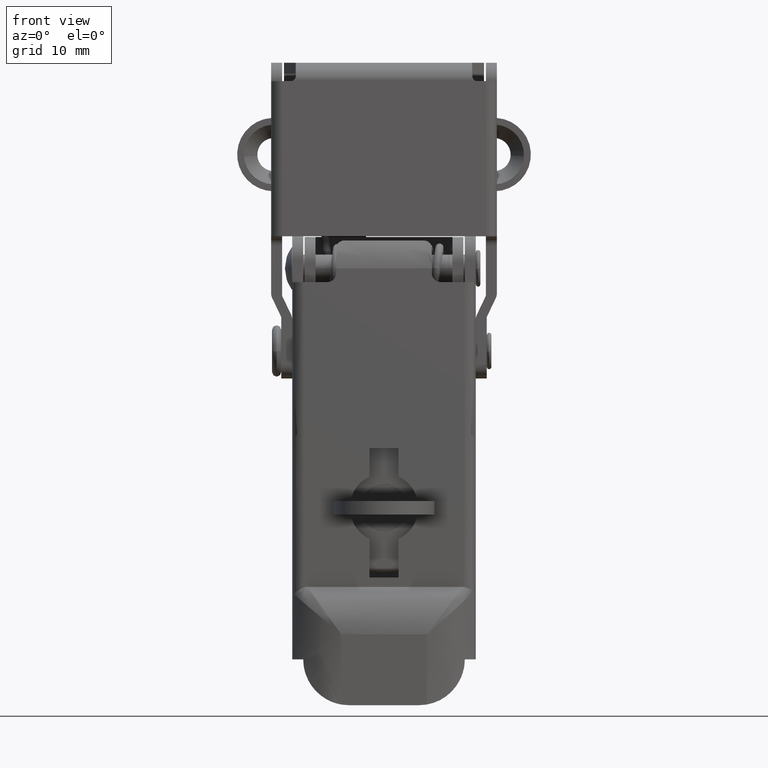
[diagram: clean part render]
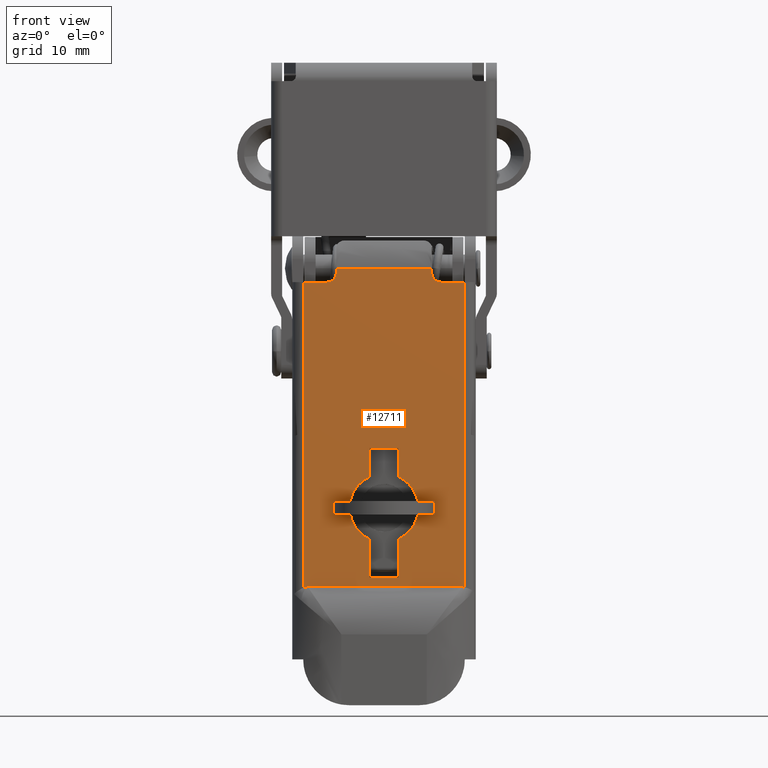
[diagram: same view with one face highlighted and labeled with its STEP entity id]
A machine part, front view. The second image highlights one B-rep face of the part: STEP entity #12711.
In plain terms, the highlighted face is a freeform B-spline surface patch.
Its self-contained STEP definition (entity closure, byte-faithful):
#11162=CARTESIAN_POINT('',(5.199999999999820,-10.000000000000901,8.099999999999881));
#11163=VERTEX_POINT('',#11162);
#11169=CARTESIAN_POINT('',(6.199999999999820,-10.000000000000901,7.099999999999880));
#11170=VERTEX_POINT('',#11169);
#11171=CARTESIAN_POINT('',(6.199999999999820,-10.000000000000901,7.099999999999880));
#11172=CARTESIAN_POINT('',(5.199999999999820,-10.000000000000901,7.099999999999882));
#11173=CARTESIAN_POINT('',(5.199999999999820,-10.000000000000901,8.099999999999881));
#11181=(BOUNDED_CURVE()B_SPLINE_CURVE(2,(#11171,#11172,#11173),.UNSPECIFIED.,.F.,.U.)CURVE()GEOMETRIC_REPRESENTATION_ITEM()QUASI_UNIFORM_CURVE()RATIONAL_B_SPLINE_CURVE((1.0,0.707106781186548,1.0))REPRESENTATION_ITEM(''));
#11182=EDGE_CURVE('',#11170,#11163,#11181,.T.);
#11402=CARTESIAN_POINT('',(-6.199999999999820,-10.000000000000840,7.099999999999880));
#11403=VERTEX_POINT('',#11402);
#11409=CARTESIAN_POINT('',(-5.199999999999820,-10.000000000000840,8.099999999999881));
#11410=VERTEX_POINT('',#11409);
#11411=CARTESIAN_POINT('',(-5.199999999999820,-10.000000000000840,8.099999999999881));
#11412=CARTESIAN_POINT('',(-5.199999999999820,-10.000000000000901,7.099999999999882));
#11413=CARTESIAN_POINT('',(-6.199999999999820,-10.000000000000901,7.099999999999880));
#11421=(BOUNDED_CURVE()B_SPLINE_CURVE(2,(#11411,#11412,#11413),.UNSPECIFIED.,.F.,.U.)CURVE()GEOMETRIC_REPRESENTATION_ITEM()QUASI_UNIFORM_CURVE()RATIONAL_B_SPLINE_CURVE((1.0,0.707106781186548,1.0))REPRESENTATION_ITEM(''));
#11422=EDGE_CURVE('',#11410,#11403,#11421,.T.);
#11450=CARTESIAN_POINT('',(-1.599999999999420,-10.000000000000901,-14.108466423577701));
#11451=VERTEX_POINT('',#11450);
#11452=CARTESIAN_POINT('',(-1.599999999999400,-10.000000000000901,-20.891533576422550));
#11453=VERTEX_POINT('',#11452);
#11454=CARTESIAN_POINT('',(-1.599999999999420,-10.000000000000901,-14.108466423577701));
#11455=CARTESIAN_POINT('',(-1.919437147472241,-10.000000000000950,-14.259011946023740));
#11456=CARTESIAN_POINT('',(-2.403429566616071,-10.000000000000799,-14.577800651997860));
#11457=CARTESIAN_POINT('',(-2.921936541103976,-10.000000000001020,-15.124279887264629));
#11458=CARTESIAN_POINT('',(-3.309443404865396,-10.000000000000730,-15.690229696084710));
#11459=CARTESIAN_POINT('',(-3.604989057299813,-10.000000000001050,-16.361150221355800));
#11460=CARTESIAN_POINT('',(-3.754876789957320,-10.000000000000840,-17.123348420227892));
#11461=CARTESIAN_POINT('',(-3.754848820318179,-10.000000000000940,-17.788025399372060));
#11462=CARTESIAN_POINT('',(-3.663814725426994,-10.000000000000890,-18.356020048420319));
#11463=CARTESIAN_POINT('',(-3.480675914143810,-10.000000000000810,-18.947852594402029));
#11464=CARTESIAN_POINT('',(-3.144622626221764,-10.000000000000981,-19.598626398130261));
#11465=CARTESIAN_POINT('',(-2.531115431920582,-10.000000000000840,-20.330893932290241));
#11466=CARTESIAN_POINT('',(-1.959399840492692,-10.000000000000931,-20.722221383805302));
#11467=CARTESIAN_POINT('',(-1.599999999999400,-10.000000000000901,-20.891533576422550));
#11468=B_SPLINE_CURVE_WITH_KNOTS('',3,(#11454,#11455,#11456,#11457,#11458,#11459,#11460,#11461,#11462,#11463,#11464,#11465,#11466,#11467),.UNSPECIFIED.,.F.,.U.,(4,1,1,1,1,1,1,1,1,1,1,4),(0.000000066314634,1.059370220122999,1.721488664389436,2.251189328274649,3.111953790427867,3.906496400660060,4.568560786095483,5.098251847248956,5.627953385796211,6.422501400886731,7.283264964682366,8.475053191979381),.UNSPECIFIED.);
#11469=EDGE_CURVE('',#11451,#11453,#11468,.T.);
#11510=CARTESIAN_POINT('',(-1.599999999999400,-10.000000000000901,-25.100000000003501));
#11511=VERTEX_POINT('',#11510);
#11512=CARTESIAN_POINT('',(-1.599999999999400,-10.000000000000901,-25.100000000003501));
#11513=CARTESIAN_POINT('',(-1.599999999999400,-10.000000000000901,-20.891533576422550));
#11514=QUASI_UNIFORM_CURVE('',1,(#11512,#11513),.UNSPECIFIED.,.F.,.U.);
#11515=EDGE_CURVE('',#11511,#11453,#11514,.T.);
#11538=CARTESIAN_POINT('',(1.600000000000000,-10.000000000000901,-25.100000000003501));
#11539=VERTEX_POINT('',#11538);
#11540=CARTESIAN_POINT('',(1.600000000000000,-10.000000000000901,-25.100000000003501));
#11541=CARTESIAN_POINT('',(-1.599999999999400,-10.000000000000901,-25.100000000003501));
#11542=QUASI_UNIFORM_CURVE('',1,(#11540,#11541),.UNSPECIFIED.,.F.,.U.);
#11543=EDGE_CURVE('',#11539,#11511,#11542,.T.);
#11566=CARTESIAN_POINT('',(1.600000000000000,-10.000000000000901,-20.891533576422649));
#11567=VERTEX_POINT('',#11566);
#11568=CARTESIAN_POINT('',(1.600000000000000,-10.000000000000901,-20.891533576422649));
#11569=CARTESIAN_POINT('',(1.600000000000000,-10.000000000000901,-25.100000000003501));
#11570=QUASI_UNIFORM_CURVE('',1,(#11568,#11569),.UNSPECIFIED.,.F.,.U.);
#11571=EDGE_CURVE('',#11567,#11539,#11570,.T.);
#11607=CARTESIAN_POINT('',(1.600000000000000,-10.000000000000901,-14.108466423577701));
#11608=VERTEX_POINT('',#11607);
#11609=CARTESIAN_POINT('',(1.600000000000000,-10.000000000000901,-20.891533576422649));
#11610=CARTESIAN_POINT('',(1.959410036740413,-10.000000000000901,-20.722232278429619));
#11611=CARTESIAN_POINT('',(2.512658749937712,-10.000000000000931,-20.343498363469770));
#11612=CARTESIAN_POINT('',(3.074363825626052,-10.000000000000860,-19.684921410610499));
#11613=CARTESIAN_POINT('',(3.460021804806671,-10.000000000000940,-19.012774221256500));
#11614=CARTESIAN_POINT('',(3.689342167653449,-10.000000000000870,-18.315647200752490));
#11615=CARTESIAN_POINT('',(3.778348344707849,-10.000000000000931,-17.478413356537519));
#11616=CARTESIAN_POINT('',(3.689062435863840,-10.000000000000840,-16.638070838807799));
#11617=CARTESIAN_POINT('',(3.381391829928322,-10.000000000001050,-15.803385488302659));
#11618=CARTESIAN_POINT('',(2.978317647366498,-10.000000000000840,-15.191855571954020));
#11619=CARTESIAN_POINT('',(2.420428544350481,-10.000000000000940,-14.593375328008150));
#11620=CARTESIAN_POINT('',(1.959410642810536,-10.000000000000890,-14.277777872797460));
#11621=CARTESIAN_POINT('',(1.600000000000000,-10.000000000000901,-14.108466423577701));
#11622=B_SPLINE_CURVE_WITH_KNOTS('',3,(#11609,#11610,#11611,#11612,#11613,#11614,#11615,#11616,#11617,#11618,#11619,#11620,#11621),.UNSPECIFIED.,.F.,.U.,(4,1,1,1,1,1,1,1,1,1,4),(0.000000066310598,1.191792389936918,1.986338669856984,2.582252876537316,3.509228701436535,4.171324237496062,5.098251847248744,6.025229990414235,6.819775066247779,7.283264964682780,8.475053191979869),.UNSPECIFIED.);
#11623=EDGE_CURVE('',#11567,#11608,#11622,.T.);
#11657=CARTESIAN_POINT('',(1.600000000000000,-10.000000000000901,-11.0));
#11658=VERTEX_POINT('',#11657);
#11659=CARTESIAN_POINT('',(1.600000000000000,-10.000000000000901,-11.0));
#11660=CARTESIAN_POINT('',(1.600000000000000,-10.000000000000901,-14.108466423577701));
#11661=QUASI_UNIFORM_CURVE('',1,(#11659,#11660),.UNSPECIFIED.,.F.,.U.);
#11662=EDGE_CURVE('',#11658,#11608,#11661,.T.);
#11685=CARTESIAN_POINT('',(-1.599999999999400,-10.000000000000901,-11.0));
#11686=VERTEX_POINT('',#11685);
#11687=CARTESIAN_POINT('',(-1.599999999999400,-10.000000000000901,-11.0));
#11688=CARTESIAN_POINT('',(1.600000000000000,-10.000000000000901,-11.0));
#11689=QUASI_UNIFORM_CURVE('',1,(#11687,#11688),.UNSPECIFIED.,.F.,.U.);
#11690=EDGE_CURVE('',#11686,#11658,#11689,.T.);
#11713=CARTESIAN_POINT('',(-1.599999999999420,-10.000000000000901,-14.108466423577701));
#11714=CARTESIAN_POINT('',(-1.599999999999400,-10.000000000000901,-11.0));
#11715=QUASI_UNIFORM_CURVE('',1,(#11713,#11714),.UNSPECIFIED.,.F.,.U.);
#11716=EDGE_CURVE('',#11451,#11686,#11715,.T.);
#11948=CARTESIAN_POINT('',(-8.309695762978798,-10.000000000000840,-26.100000000003501));
#11949=VERTEX_POINT('',#11948);
#11978=CARTESIAN_POINT('',(-8.800000000000001,-10.000000000000840,-26.203446452669500));
#11979=VERTEX_POINT('',#11978);
#11980=CARTESIAN_POINT('',(-8.800000000000001,-10.000000000000840,-26.203446452669500));
#11981=CARTESIAN_POINT('',(-8.723042808795004,-10.000000000000840,-26.167373955368578));
#11982=CARTESIAN_POINT('',(-8.643344279397903,-10.000000000000840,-26.141727626243330));
#11983=CARTESIAN_POINT('',(-8.479333247419479,-10.000000000000840,-26.107983353856110));
#11984=CARTESIAN_POINT('',(-8.394490487036560,-10.000000000000840,-26.100000000003959));
#11985=CARTESIAN_POINT('',(-8.309695762978739,-10.000000000000840,-26.100000000003948));
#11986=B_SPLINE_CURVE_WITH_KNOTS('',3,(#11980,#11981,#11982,#11983,#11984,#11985),.UNSPECIFIED.,.F.,.U.,(4,2,4),(0.0,0.500000000000000,1.0),.UNSPECIFIED.);
#11987=EDGE_CURVE('',#11979,#11949,#11986,.T.);
#12025=CARTESIAN_POINT('',(-8.800000000000001,-10.000000000000840,7.099999999999880));
#12026=VERTEX_POINT('',#12025);
#12062=CARTESIAN_POINT('',(-8.800000000000001,-10.000000000000840,7.099999999999880));
#12063=CARTESIAN_POINT('',(-8.800000000000001,-10.000000000000840,-26.203446452669500));
#12064=QUASI_UNIFORM_CURVE('',1,(#12062,#12063),.UNSPECIFIED.,.F.,.U.);
#12065=EDGE_CURVE('',#12026,#11979,#12064,.T.);
#12310=CARTESIAN_POINT('',(-5.199999999999820,-10.000000000000840,8.599999999999799));
#12311=VERTEX_POINT('',#12310);
#12312=CARTESIAN_POINT('',(-5.199999999999820,-10.000000000000840,8.099999999999881));
#12313=CARTESIAN_POINT('',(-5.199999999999820,-10.000000000000840,8.599999999999799));
#12314=QUASI_UNIFORM_CURVE('',1,(#12312,#12313),.UNSPECIFIED.,.F.,.U.);
#12315=EDGE_CURVE('',#11410,#12311,#12314,.T.);
#12352=CARTESIAN_POINT('',(-8.800000000000001,-10.000000000000840,7.099999999999880));
#12353=CARTESIAN_POINT('',(-6.199999999999820,-10.000000000000840,7.099999999999880));
#12354=QUASI_UNIFORM_CURVE('',1,(#12352,#12353),.UNSPECIFIED.,.F.,.U.);
#12355=EDGE_CURVE('',#12026,#11403,#12354,.T.);
#12389=CARTESIAN_POINT('',(5.199999999999820,-10.000000000000901,8.599999999999799));
#12390=VERTEX_POINT('',#12389);
#12404=CARTESIAN_POINT('',(5.199999999999820,-10.000000000000901,8.099999999999881));
#12405=CARTESIAN_POINT('',(5.199999999999820,-10.000000000000901,8.599999999999799));
#12406=QUASI_UNIFORM_CURVE('',1,(#12404,#12405),.UNSPECIFIED.,.F.,.U.);
#12407=EDGE_CURVE('',#11163,#12390,#12406,.T.);
#12431=CARTESIAN_POINT('',(8.800000000000001,-10.000000000000901,7.099999999999880));
#12432=VERTEX_POINT('',#12431);
#12433=CARTESIAN_POINT('',(8.800000000000001,-10.000000000000901,7.099999999999880));
#12434=CARTESIAN_POINT('',(6.199999999999820,-10.000000000000901,7.099999999999880));
#12435=QUASI_UNIFORM_CURVE('',1,(#12433,#12434),.UNSPECIFIED.,.F.,.U.);
#12436=EDGE_CURVE('',#12432,#11170,#12435,.T.);
#12525=CARTESIAN_POINT('',(-5.199999999999820,-10.000000000000840,8.599999999999799));
#12526=CARTESIAN_POINT('',(5.199999999999820,-10.000000000000901,8.599999999999799));
#12527=QUASI_UNIFORM_CURVE('',1,(#12525,#12526),.UNSPECIFIED.,.F.,.U.);
#12528=EDGE_CURVE('',#12311,#12390,#12527,.T.);
#12612=CARTESIAN_POINT('',(8.526932553306390,-10.000000000000840,-26.100000000003501));
#12613=VERTEX_POINT('',#12612);
#12639=CARTESIAN_POINT('',(-8.309695762978798,-10.000000000000840,-26.100000000003501));
#12640=CARTESIAN_POINT('',(8.526932553306390,-10.000000000000840,-26.100000000003501));
#12641=QUASI_UNIFORM_CURVE('',1,(#12639,#12640),.UNSPECIFIED.,.F.,.U.);
#12642=EDGE_CURVE('',#11949,#12613,#12641,.T.);
#12670=CARTESIAN_POINT('',(-9.679119965887786,-10.000000000000840,10.338432082854800));
#12671=CARTESIAN_POINT('',(-9.679119965887786,-10.000000000000840,-27.941879469025679));
#12672=CARTESIAN_POINT('',(9.679120437956572,-10.000000000000840,10.338432082854800));
#12673=CARTESIAN_POINT('',(9.679120437956572,-10.000000000000840,-27.941879469025679));
#12674=B_SPLINE_SURFACE_WITH_KNOTS('',1,1,((#12670,#12672),(#12671,#12673)),.UNSPECIFIED.,.F.,.F.,.U.,(2,2),(2,2),(0.0,38.280311551880473),(0.0,19.358240403844359),.UNSPECIFIED.);
#12675=ORIENTED_EDGE('',*,*,#12355,.F.);
#12676=ORIENTED_EDGE('',*,*,#12065,.T.);
#12677=ORIENTED_EDGE('',*,*,#11987,.T.);
#12678=ORIENTED_EDGE('',*,*,#12642,.T.);
#12679=CARTESIAN_POINT('',(8.800000000000001,-10.000000000000840,-26.137274163665900));
#12680=VERTEX_POINT('',#12679);
#12681=CARTESIAN_POINT('',(8.526932553306390,-10.000000000000840,-26.100000000003501));
#12682=CARTESIAN_POINT('',(8.619651030786534,-10.000000000000680,-26.100000000003750));
#12683=CARTESIAN_POINT('',(8.710819415045245,-10.000000000000840,-26.111355855012579));
#12684=CARTESIAN_POINT('',(8.800000000000001,-10.000000000000840,-26.137274163665900));
#12685=QUASI_UNIFORM_CURVE('',3,(#12681,#12682,#12683,#12684),.UNSPECIFIED.,.F.,.U.);
#12686=EDGE_CURVE('',#12613,#12680,#12685,.T.);
#12687=ORIENTED_EDGE('',*,*,#12686,.T.);
#12688=CARTESIAN_POINT('',(8.800000000000001,-10.000000000000840,-26.137274163665900));
#12689=CARTESIAN_POINT('',(8.800000000000001,-10.000000000000901,7.099999999999880));
#12690=QUASI_UNIFORM_CURVE('',1,(#12688,#12689),.UNSPECIFIED.,.F.,.U.);
#12691=EDGE_CURVE('',#12680,#12432,#12690,.T.);
#12692=ORIENTED_EDGE('',*,*,#12691,.T.);
#12693=ORIENTED_EDGE('',*,*,#12436,.T.);
#12694=ORIENTED_EDGE('',*,*,#11182,.T.);
#12695=ORIENTED_EDGE('',*,*,#12407,.T.);
#12696=ORIENTED_EDGE('',*,*,#12528,.F.);
#12697=ORIENTED_EDGE('',*,*,#12315,.F.);
#12698=ORIENTED_EDGE('',*,*,#11422,.T.);
#12699=EDGE_LOOP('',(#12675,#12676,#12677,#12678,#12687,#12692,#12693,#12694,#12695,#12696,#12697,#12698));
#12700=FACE_OUTER_BOUND('',#12699,.T.);
#12701=ORIENTED_EDGE('',*,*,#11469,.F.);
#12702=ORIENTED_EDGE('',*,*,#11716,.T.);
#12703=ORIENTED_EDGE('',*,*,#11690,.T.);
#12704=ORIENTED_EDGE('',*,*,#11662,.T.);
#12705=ORIENTED_EDGE('',*,*,#11623,.F.);
#12706=ORIENTED_EDGE('',*,*,#11571,.T.);
#12707=ORIENTED_EDGE('',*,*,#11543,.T.);
#12708=ORIENTED_EDGE('',*,*,#11515,.T.);
#12709=EDGE_LOOP('',(#12701,#12702,#12703,#12704,#12705,#12706,#12707,#12708));
#12710=FACE_BOUND('',#12709,.T.);
#12711=ADVANCED_FACE('',(#12700,#12710),#12674,.T.);